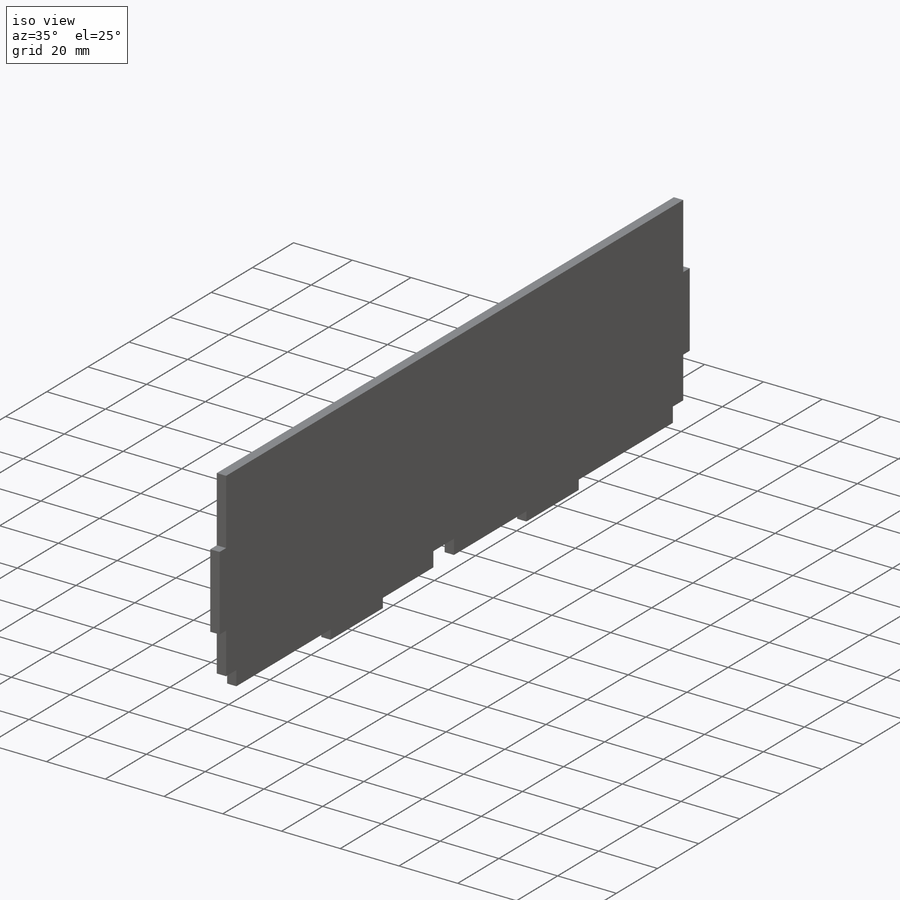
[diagram: iso view]
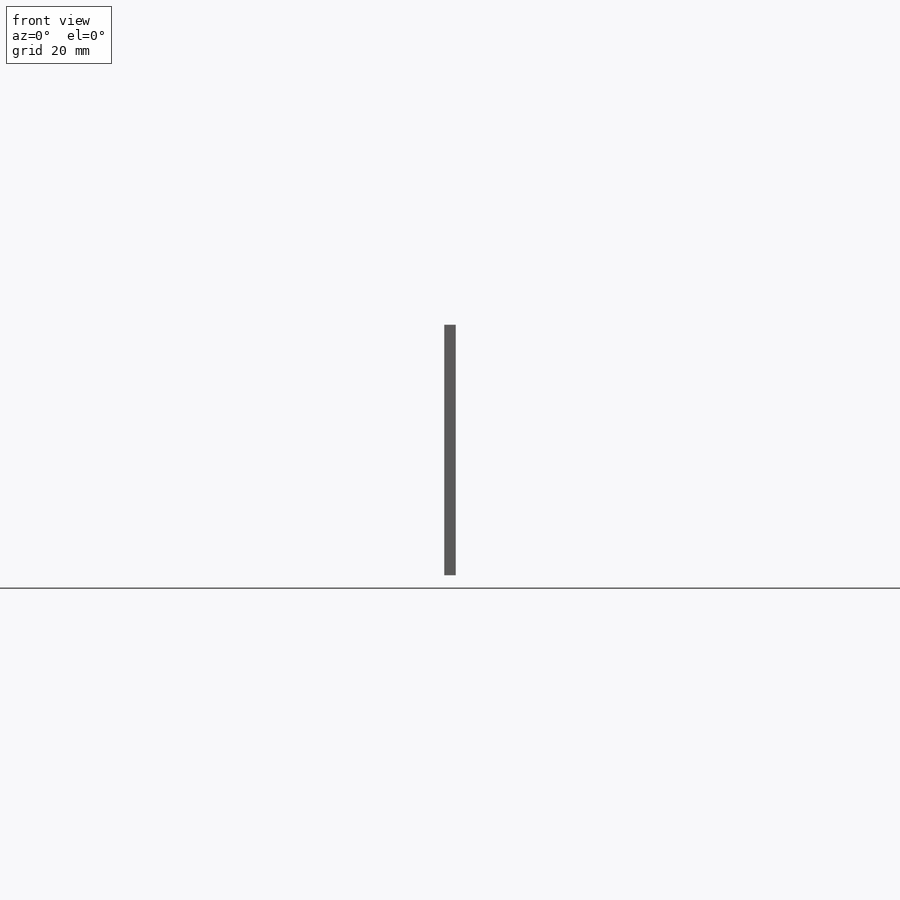
[diagram: front view]
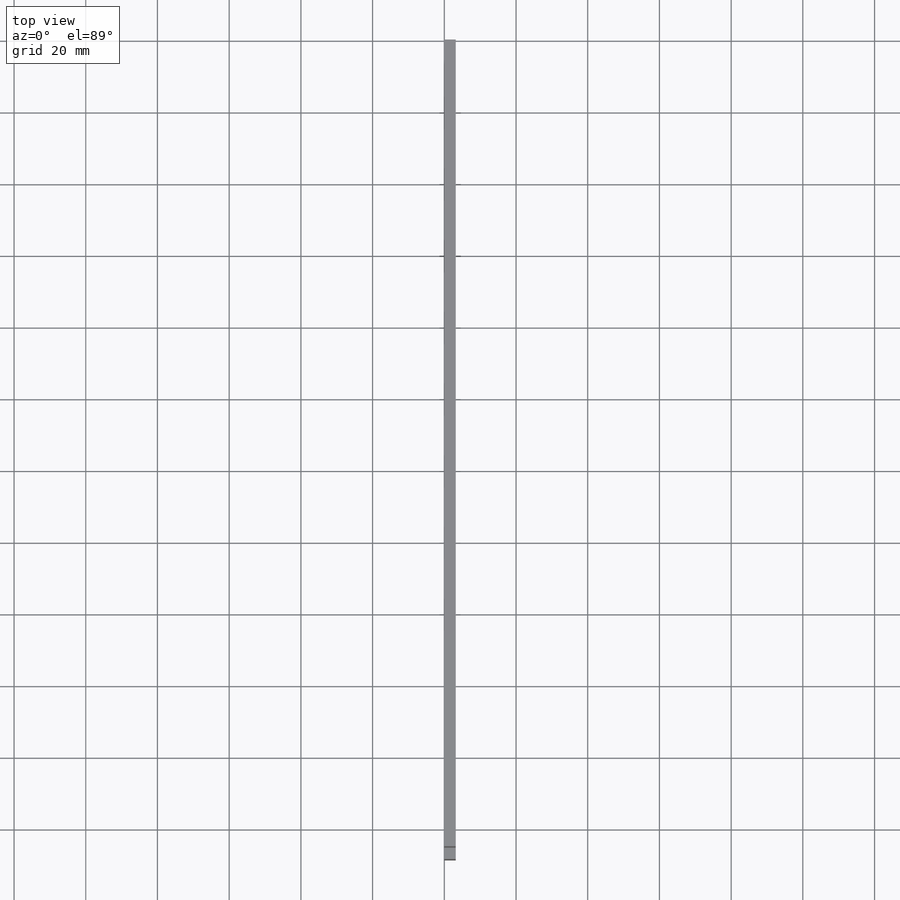
[diagram: top view]
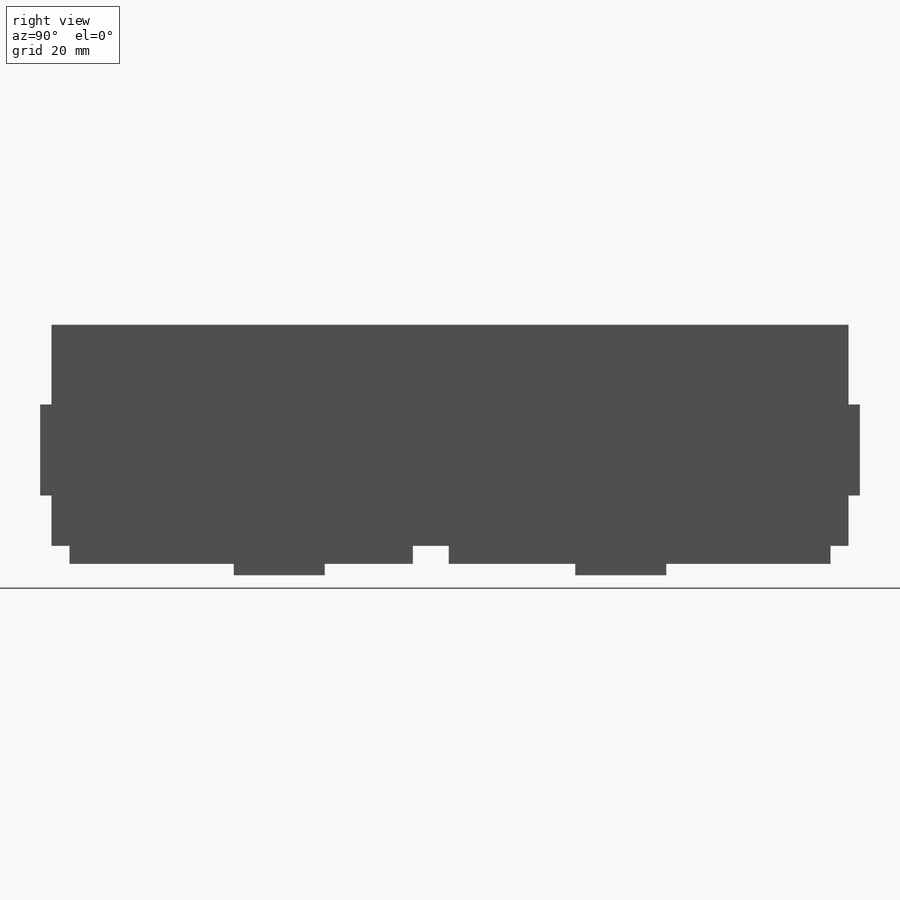
[diagram: right view]
SOLIDWORKS PART (.sldprt)
format: sldprt  version: not decoded by parser v0  size: 204,800 bytes
history: native  units: mm
features: sketch x3, cut_extrude x2, material x1, extrude x1 (+13 scaffold rows collapsed)
feature tree (20):
  scaffold x13  (default folders/planes/origin — collapsed)
  material  "Material <not specified>"
  sketch  "Sketch1"  dims[c1.D1=222.25mm c1.D2=111.125mm c2.D1=222.25mm c2.D2=25.4mm c2.D3=25.4mm c2.D4=3.175mm c2.D5=3.175mm c2.D6=3.175mm c2.D7=19.05mm c2.D8=25.4mm c2.D9=25.4mm c2.D10=50.8mm c2.D11=50.8mm c2.D12=3.175mm c2.D13=69.85mm c2.D14=3.175mm c2.D15=3.175mm c2.D16=3.175mm c2.D17=25.4mm c2.D18=25.4mm]
  extrude  "Boss-Extrude1"  Depth=3.175mm
  sketch  "Sketch2"  dims[D1=3.175mm]
  cut_extrude  "Cut-Extrude1"  [1 undecoded]
  sketch  "Sketch3"  dims[c1.D1=5.0mm c1.D2=5.0mm c1.D3=5.0mm c1.D4=5.0mm c1.D5=5.0mm c1.D6=10.0mm c1.D7=5.0mm c2.D6=10.0mm]
  cut_extrude  "Cut-Extrude2"  Depth=10mm
decode coverage: 5 of 6 modeling features carry decoded parameters
note: 1 parameter value undecoded
note: suppression state not decoded; provenance and decode notes live in map.json
